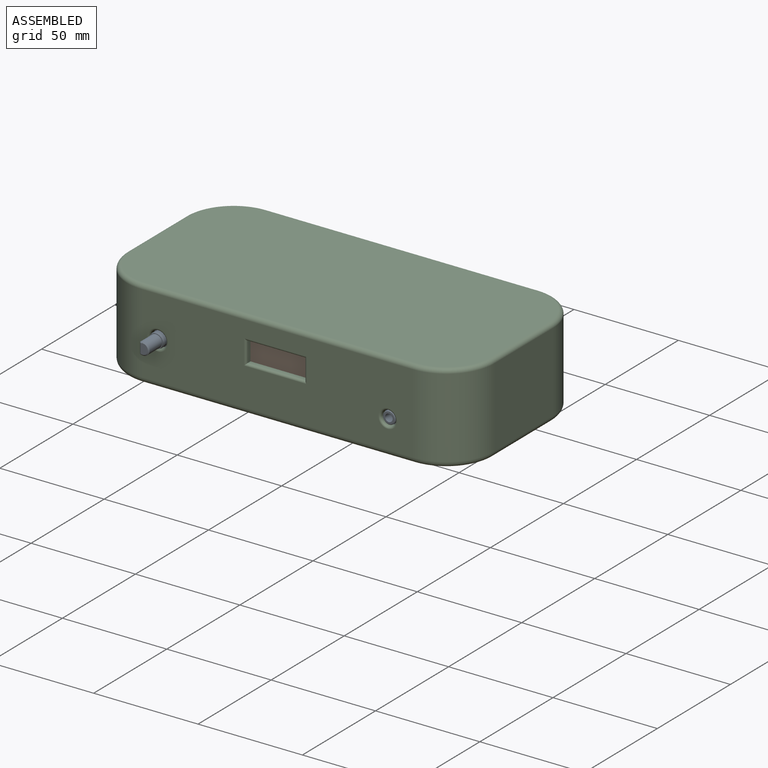
[diagram: assembled view]
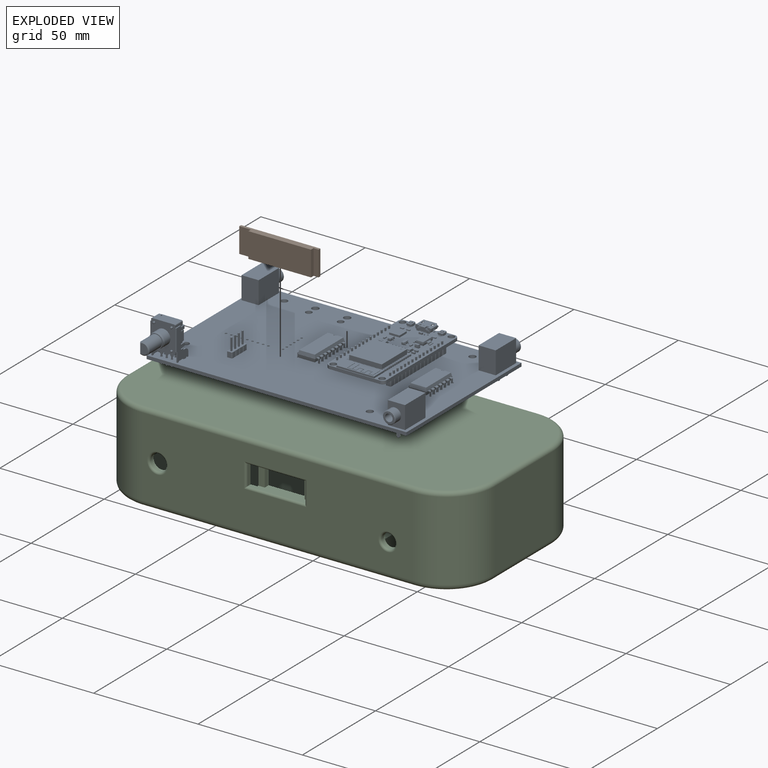
[diagram: exploded view]
GUIDED TOUR — FREECAD ASSEMBLY "case"

This assembly has 3 components, labeled P0..P2 below (a component is one placed body or linked part; the same part can appear more than once), held together by 0 modeled joints plus 2 derived contact edges. A joint is a constraint between two components; its type names the relative motion it leaves free:
  CONTACT — a derived adjacency edge — the two components touch in the source model (clearance under 2% of the assembly's diagonal); it is measured from the geometry, not a modeled constraint.
Axis/direction vectors are unit vectors and 'through' points are millimeter coordinates, both in the assembly's world frame.

MATES
  1. CONTACT "contact_0_2": P0 <-> P2, contact direction (-0.922, 0.113, 0.371) through (135.33, -1.93, 11.57) mm (derived from contact, not a modeled constraint)
  2. CONTACT "contact_1_2": P1 <-> P2, contact direction (0.037, 0.978, -0.205) through (98.60, 0.00, 29.50) mm (derived from contact, not a modeled constraint)

ASSEMBLY ORDER
  1. P0 — the base component [order verified]
  2. P2 [order verified]
  3. P1 [order verified]
(P2 verified with a relaxed clearance tolerance: the source model stores slight part interference there.)
Order-tag legend:
  [order verified] — this step's position reverses a verified removal order: the component was checked to insert without passing through the ones already placed.

Of the 3 components, 2 carry a construction recipe — the FreeCAD feature program (sketches with constraints, then the solid features that consume them) that regenerates the part from scratch, quoted from this document or from the linked companion document it references; the rest are supplied as boundary geometry only. The tour below walks the components in assembly order: each is shown spotlighted twice — in the assembled view, then in the exploded view, where a leader line traces a displaced component back to its assembled socket (components that stay in place when exploded have no leader line; saturated green if recipe-attached, orange if geometry-only; every other component desaturated gray) — followed by its recipe or geometry summary and the mates that hold it.
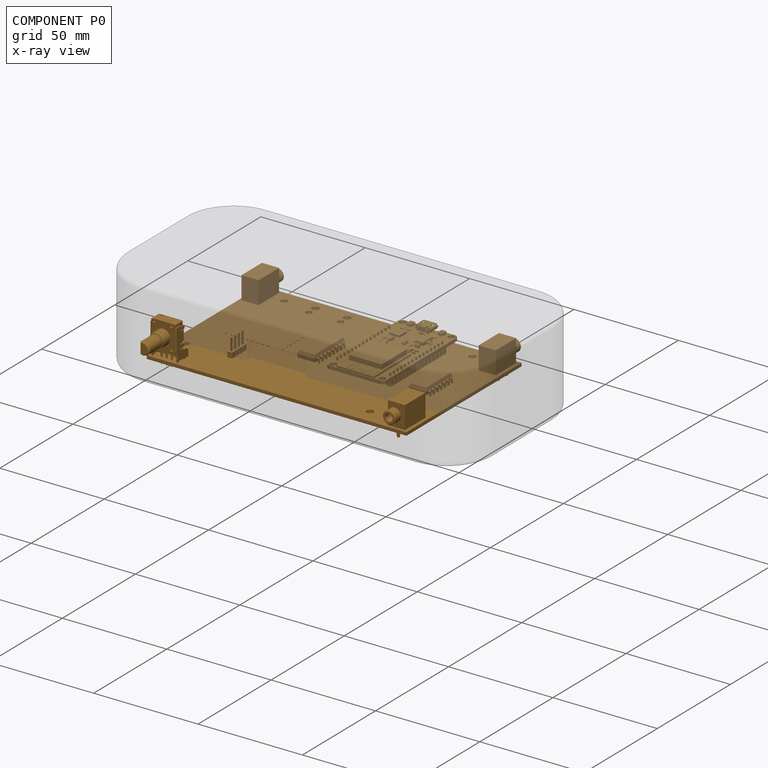
[diagram: component P0 — x-ray view]
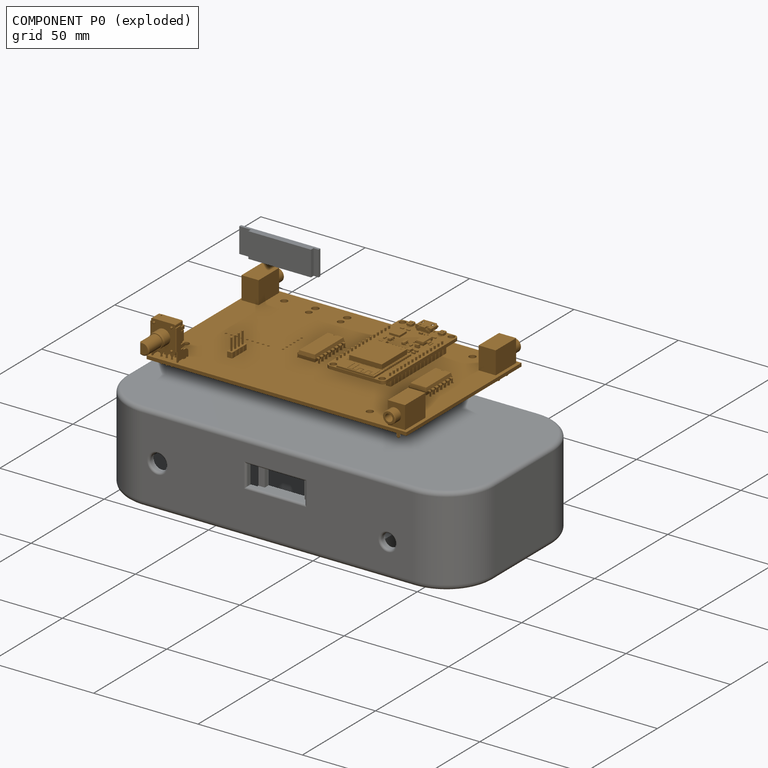
[diagram: component P0 — exploded]
COMPONENT P0 — geometry summary ("PCB"; no construction recipe available for this part):
  bounding box: 124.5 x 95.1 x 22.7 mm
  tessellated surface: 65,174 triangles
  volume: 26353 mm^3 (10% of its bounding box)
Held by: resting contact with P2 (derived edge).
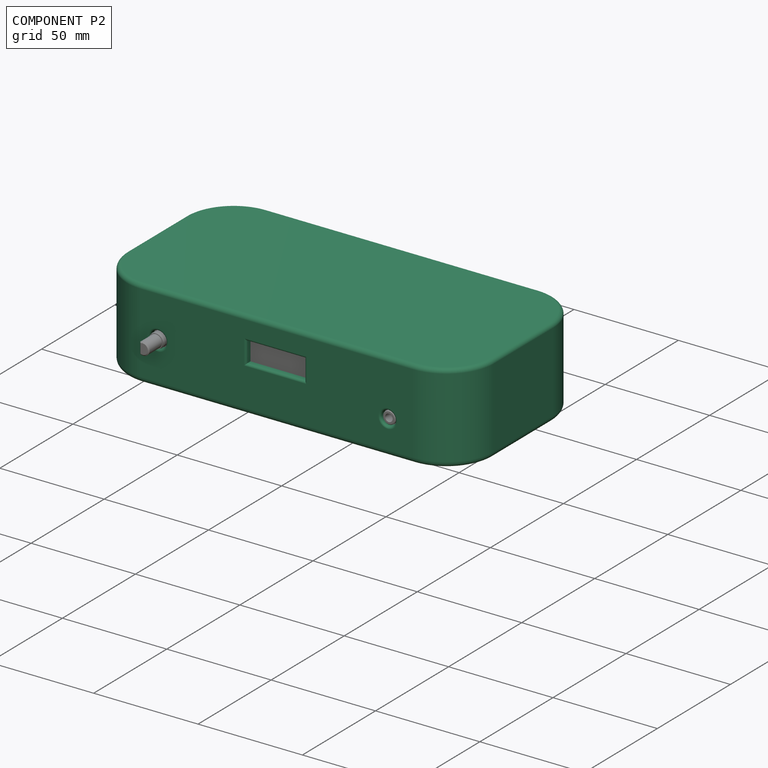
[diagram: component P2 — assembled]
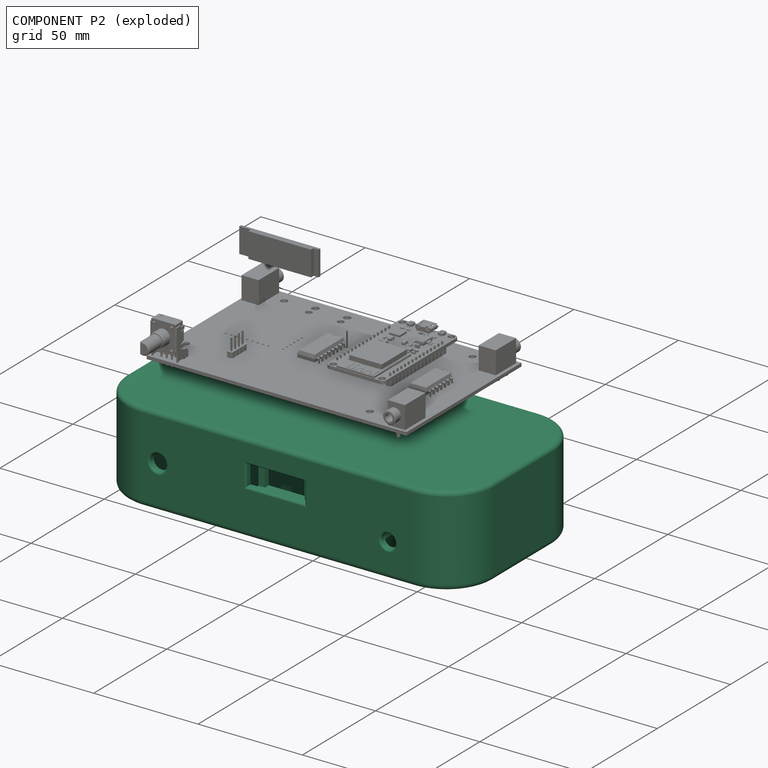
[diagram: component P2 — exploded]
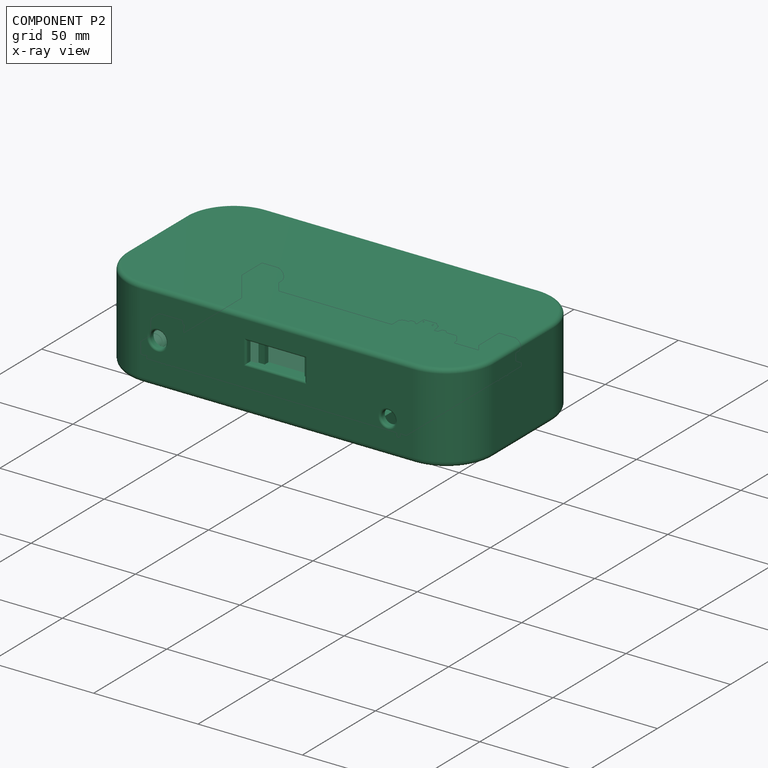
[diagram: component P2 — x-ray view]
COMPONENT P2 — recipe-attached ("Case", modeled in this document).
Held by: resting contact with P0 (derived edge); resting contact with P1 (derived edge).
Construction recipe (the document's own serialized feature program — sketch geometry with constraints, then the solid features built on it; lengths are millimeters unless a unit is written):

FEATURE [Sketcher::SketchObject] Sketch
  ArcFitTolerance = 1e-06
  AttachmentSupport = -> [XY_Plane001]
  ExternalBSplineMaxDegree = 5
  ExternalBSplineTolerance = 0.0001
  FixShape = 1
  FullyConstrained = true
  InternalTolerance = 1e-06
  InvalidShape = false
  MakeInternals = false
  MapMode = 5
  Support = -> [XY_Plane001]
  TreeRank = 109
  ValidateShape = false
  sketch-geometry (10):
    g0: ArcOfCircle CenterX=20 CenterY=20 CenterZ=0 NormalX=0 NormalY=0 NormalZ=1 AngleXU=0 Radius=20 StartAngle=3.14159 EndAngle=4.71239
    g1: LineSegment StartX=0 StartY=20 StartZ=0 EndX=0 EndY=60 EndZ=0
    g2: ArcOfCircle CenterX=20 CenterY=60 CenterZ=0 NormalX=0 NormalY=0 NormalZ=1 AngleXU=0 Radius=20 StartAngle=1.5708 EndAngle=3.14159
    g3: LineSegment StartX=20 StartY=80 StartZ=0 EndX=150 EndY=80 EndZ=0
    g4: ArcOfCircle CenterX=150 CenterY=60 CenterZ=0 NormalX=0 NormalY=0 NormalZ=1 AngleXU=0 Radius=20 StartAngle=2e-16 EndAngle=1.5708
    g5: LineSegment StartX=170 StartY=60 StartZ=0 EndX=170 EndY=20 EndZ=0
    g6: ArcOfCircle CenterX=150 CenterY=20 CenterZ=0 NormalX=0 NormalY=0 NormalZ=1 AngleXU=0 Radius=20 StartAngle=4.71239 EndAngle=6.28319
    g7: LineSegment StartX=150 StartY=0 StartZ=0 EndX=20 EndY=0 EndZ=0
    g8: GeomPoint [constr] X=0 Y=0 Z=0
    g9: GeomPoint [constr] X=170 Y=80 Z=0
  constraints (23):
    c: Tangent(g0,g1) = 1.5708
    c: Tangent(g1,g2) = 1.5708
    c: Tangent(g2,g3) = 1.5708
    c: Tangent(g3,g4) = 1.5708
    c: Tangent(g4,g5) = 1.5708
    c: Tangent(g5,g6) = 1.5708
    c: Tangent(g6,g7) = 1.5708
    c: Tangent(g7,g0) = 1.5708
    c: Horizontal(g3)
    c: Horizontal(g7)
    c: Vertical(g1)
    c: Vertical(g5)
    c: Equal(g0,g2)
    c: Equal(g2,g4)
    c: Equal(g4,g6)
    c: PointOnObject(g8,g1)
    c: PointOnObject(g8,g7)
    c: PointOnObject(g9,g3)
    c: PointOnObject(g9,g5)
    c: Coincident(g8,g-1)
    c: DistanceX(g7,g7) = 130
    c: DistanceX(g6,g5) = 20
    c: DistanceY(g0,g2) = 80
FEATURE [PartDesign::Pad] Pad
  AddSubType = 0
  AlongSketchNormal = false
  AutoTaperInnerAngle = true
  CheckUpToFaceLimits = true
  ClaimChildren = false
  Direction = (0,0,1)
  Fit = 0
  FitJoin = 0
  FixShape = 1
  InnerFit = 0
  InnerFitJoin = 0
  InvalidShape = false
  Length = 40
  Length2 = 100
  Linearize = true
  NewSolid = false
  Profile = -> Sketch
  Suppress = false
  TaperInnerAngle = 0
  TaperInnerAngleRev = 0
  TreeRank = 112
  Type = 0
  ValidateShape = false
  _ProfileBasedVersion = 1
FEATURE [PartDesign::Thickness] Thickness
  AddSubType = 0
  Base = -> Pad [Face10]
  BaseFeature = -> Pad
  FixShape = 1
  Intersection = false
  InvalidShape = false
  Join = 0
  MakeOffset = false
  Mode = 0
  NewSolid = false
  SupportTransform = false
  Suppress = false
  TreeRank = 113
  ValidateShape = false
  Value = 3
  expr: Value = <<Parameters>>.wall_width
FEATURE [PartDesign::SubShapeBinder] Binder  label="Binder(SW1_PEC12R-2220F-S0024_f3370e811a44)..."
  BindCopyOnChange = 0
  BindMode = 0
  ClaimChildren = false
  Context = -> Part001 [Body.Binder.]
  EdgeTolerance = 1e-06
  FillStyle = 0
  FixShape = 1
  Fuse = false
  InvalidShape = false
  MakeFace = true
  MergeEdges = true
  OffsetFill = false
  OffsetIntersection = false
  OffsetJoinType = 0
  OffsetOpenResult = false
  Outline = false
  PartialLoad = false
  Relative = true
  SplitEdges = false
  Support = -> [Board_879e[Step_Models_879e.Top_879e.Shape016.Face137,Step_Models_879e.Top_879e.Shape016.Face104,Step_Models_879e.Top_879e.Shape016.Face138]]
  TightBound = false
  TreeRank = 115
  ValidateShape = false
  _Version = 8
FEATURE [PartDesign::SubShapeBinder] Binder001  label="Binder001(J3_CUI_DEVICES_SJ1-3533NG_4473374c59b9)..."
  BindCopyOnChange = 0
  BindMode = 0
  ClaimChildren = false
  Context = -> Part001 [Body.Binder001.]
  EdgeTolerance = 1e-06
  FillStyle = 0
  FixShape = 1
  Fuse = false
  InvalidShape = false
  MakeFace = true
  MergeEdges = true
  OffsetFill = false
  OffsetIntersection = false
  OffsetJoinType = 0
  OffsetOpenResult = false
  Outline = false
  PartialLoad = false
  Relative = true
  SplitEdges = false
  Support = -> [Board_879e[Step_Models_879e.Top_879e.Shape.Face10,Step_Models_879e.Top_879e.Shape.Face5]]
  TightBound = false
  TreeRank = 118
  ValidateShape = false
  _Version = 8
FEATURE [Part::SubShapeBinder] Import  label="Import(J3_CUI_DEVICES_SJ1-3533NG_4473374c59b9)"
  BindCopyOnChange = 0
  BindMode = 0
  ClaimChildren = false
  Context = -> Part001 [Body.Import.]
  EdgeTolerance = 1e-06
  FillStyle = 0
  FixShape = 1
  Fuse = false
  InvalidShape = false
  MakeFace = false
  MergeEdges = true
  OffsetFill = false
  OffsetIntersection = false
  OffsetJoinType = 0
  OffsetOpenResult = false
  Outline = false
  PartialLoad = false
  Relative = true
  SplitEdges = false
  Support = -> [Board_879e[Step_Models_879e.Top_879e.Shape.]]
  TightBound = false
  TreeRank = 119
  ValidateShape = false
  _Version = 8
FEATURE [Sketcher::SketchObject] Sketch001
  ArcFitTolerance = 1e-06
  AttachmentSupport = -> [XZ_Plane001]
  ExternalBSplineMaxDegree = 5
  ExternalBSplineTolerance = 0.0001
  ExternalGeometry = -> [Binder,Binder001,Import]
  FixShape = 1
  FullyConstrained = false
  InternalTolerance = 1e-06
  InvalidShape = false
  MakeInternals = false
  MapMode = 5
  Placement = pos=(0,0,0) rot=(1,0,0;1.5708rad)
  Support = -> [XZ_Plane001]
  TreeRank = 116
  ValidateShape = false
  expr: Constraints[3] = <<Parameters>>.clearance
  expr: Constraints[6] = <<Parameters>>.clearance
  sketch-geometry (4):
    g0: Circle CenterX=27.66 CenterY=18 CenterZ=0 NormalX=0 NormalY=0 NormalZ=1 AngleXU=0 Radius=4
    g1: GeomPoint [constr] X=31.66 Y=18 Z=0
    g2: Circle CenterX=137.94 CenterY=13.5 CenterZ=0 NormalX=0 NormalY=0 NormalZ=1 AngleXU=0 Radius=3.5
    g3: GeomPoint [constr] X=137.94 Y=17 Z=0
  constraints (7):
    c: Coincident(g0,g-6)
    c: PointOnObject(g1,g0)
    c: Horizontal(g1,g-4)
    c: DistanceX(g-4,g1) = 0.5
    c: Coincident(g-8,g2)
    c: PointOnObject(g3,g2)
    c: DistanceY(g-8,g3) = 0.5
FEATURE [PartDesign::Pocket] Pocket
  AddSubType = 1
  AutoTaperInnerAngle = true
  BaseFeature = -> Thickness
  CheckUpToFaceLimits = true
  ClaimChildren = false
  Fit = 0
  FitJoin = 0
  FixShape = 1
  InnerFit = 0
  InnerFitJoin = 0
  InvalidShape = false
  Length = 5
  Length2 = 100
  Linearize = true
  NewSolid = false
  Profile = -> Sketch001
  Reversed = true
  Suppress = false
  TaperInnerAngle = 0
  TaperInnerAngleRev = 0
  TreeRank = 117
  Type = 0
  ValidateShape = false
  _ProfileBasedVersion = 1
  _Version = 1
FEATURE [PartDesign::SubShapeBinder] Binder002  label="Binder002(J3_CUI_DEVICES_SJ1_3533NG_4473374c59b9_ln_001_CUI_DEVICES_SJ1-3533NG_090c0ab9f9ee)..."
  BindCopyOnChange = 0
  BindMode = 0
  ClaimChildren = false
  Context = -> Part001 [Body.Binder002.]
  EdgeTolerance = 1e-06
  FillStyle = 0
  FixShape = 1
  Fuse = false
  InvalidShape = false
  MakeFace = true
  MergeEdges = true
  OffsetFill = false
  OffsetIntersection = false
  OffsetJoinType = 0
  OffsetOpenResult = false
  Outline = false
  PartialLoad = false
  Relative = true
  SplitEdges = false
  Support = -> <blob elided: 541 chars, md5=5183de5e>
  TightBound = false
  TreeRank = 120
  ValidateShape = false
  _Version = 8
FEATURE [Sketcher::SketchObject] Sketch002
  ArcFitTolerance = 1e-06
  AttachmentSupport = -> [XZ_Plane001]
  ExternalBSplineMaxDegree = 5
  ExternalBSplineTolerance = 0.0001
  ExternalGeometry = -> [Binder002]
  FixShape = 1
  FullyConstrained = true
  InternalTolerance = 1e-06
  InvalidShape = false
  MakeInternals = false
  MapMode = 5
  Placement = pos=(0,0,0) rot=(1,0,0;1.5708rad)
  Support = -> [XZ_Plane001]
  TreeRank = 121
  ValidateShape = false
  expr: Constraints[12] = <<Parameters>>.clearance
  expr: Constraints[13] = <<Parameters>>.clearance
  expr: Constraints[14] = <<Parameters>>.clearance
  expr: Constraints[15] = <<Parameters>>.clearance
  sketch-geometry (8):
    g0: Circle CenterX=139.54 CenterY=13.5 CenterZ=0 NormalX=0 NormalY=0 NormalZ=1 AngleXU=0 Radius=3.5
    g1: Circle CenterX=64.45 CenterY=14.5 CenterZ=0 NormalX=0 NormalY=0 NormalZ=1 AngleXU=0 Radius=4.65
    g2: Circle CenterX=49.21 CenterY=14.5 CenterZ=0 NormalX=0 NormalY=0 NormalZ=1 AngleXU=0 Radius=4.65
    g3: Circle CenterX=25.96 CenterY=13.5 CenterZ=0 NormalX=0 NormalY=0 NormalZ=1 AngleXU=0 Radius=3.5
    g4: GeomPoint [constr] X=139.54 Y=17 Z=0
    g5: GeomPoint [constr] X=59.8 Y=14.5 Z=0
    g6: GeomPoint [constr] X=44.56 Y=14.5 Z=0
    g7: GeomPoint [constr] X=25.96 Y=17 Z=0
  constraints (16):
    c: Coincident(g-4,g3)
    c: Coincident(g-6,g2)
    c: Coincident(g-8,g1)
    c: Coincident(g-10,g0)
    c: PointOnObject(g4,g0)
    c: PointOnObject(g5,g1)
    c: PointOnObject(g6,g2)
    c: PointOnObject(g7,g3)
    c: Vertical(g7,g-4)
    c: Horizontal(g6,g-5)
    c: Horizontal(g5,g-7)
    c: Vertical(g4,g-10)
    c: DistanceY(g-10,g4) = 0.5
    c: DistanceX(g5,g-7) = 0.5
    c: DistanceX(g6,g-5) = 0.5
    c: DistanceY(g-4,g7) = 0.5
FEATURE [PartDesign::Pocket] Pocket001
  AddSubType = 1
  AutoTaperInnerAngle = true
  BaseFeature = -> Pocket
  CheckUpToFaceLimits = true
  ClaimChildren = false
  Fit = 0
  FitJoin = 0
  FixShape = 1
  InnerFit = 0
  InnerFitJoin = 0
  InvalidShape = false
  Length = 100
  Length2 = 100
  Linearize = true
  NewSolid = false
  Profile = -> Sketch002
  Suppress = false
  TaperInnerAngle = 0
  TaperInnerAngleRev = 0
  TreeRank = 122
  Type = 0
  ValidateShape = false
  _ProfileBasedVersion = 1
  _Version = 1
FEATURE [PartDesign::SubShapeBinder] Binder003  label="Binder003(U2_USB_Micro-B_Molex_47346-0001_d01e381b36a0[6])..."
  BindCopyOnChange = 0
  BindMode = 0
  ClaimChildren = false
  Context = -> Part001 [Body.Binder003.]
  EdgeTolerance = 1e-06
  FillStyle = 0
  FixShape = 1
  Fuse = false
  InvalidShape = false
  MakeFace = true
  MergeEdges = true
  OffsetFill = false
  OffsetIntersection = false
  OffsetJoinType = 0
  OffsetOpenResult = false
  Outline = false
  PartialLoad = false
  Relative = true
  SplitEdges = false
  Support = -> [Board_879e[Step_Models_879e.Top_879e.Shape005.Face191,Step_Models_879e.Top_879e.Shape005.Face225]]
  TightBound = false
  TreeRank = 123
  ValidateShape = false
  _Version = 8
FEATURE [Sketcher::SketchObject] Sketch003
  ArcFitTolerance = 1e-06
  AttachmentSupport = -> [XZ_Plane001]
  ExternalBSplineMaxDegree = 5
  ExternalBSplineTolerance = 0.0001
  ExternalGeometry = -> [Binder003]
  FixShape = 1
  FullyConstrained = true
  InternalTolerance = 1e-06
  InvalidShape = false
  MakeInternals = false
  MapMode = 5
  Placement = pos=(0,0,0) rot=(1,0,0;1.5708rad)
  Support = -> [XZ_Plane001]
  TreeRank = 124
  ValidateShape = false
  sketch-geometry (4):
    g0: ArcOfCircle CenterX=98.0835 CenterY=13.2324 CenterZ=0 NormalX=0 NormalY=0 NormalZ=1 AngleXU=0 Radius=2.7231 StartAngle=1.5708 EndAngle=4.71239
    g1: ArcOfCircle CenterX=104.437 CenterY=13.2324 CenterZ=0 NormalX=0 NormalY=0 NormalZ=1 AngleXU=0 Radius=2.7231 StartAngle=4.71239 EndAngle=7.85398
    g2: LineSegment StartX=98.0835 StartY=10.5093 StartZ=0 EndX=104.437 EndY=10.5093 EndZ=0
    g3: LineSegment StartX=104.437 StartY=15.9555 StartZ=0 EndX=98.0835 EndY=15.9555 EndZ=0
  constraints (10):
    c: Tangent(g0,g2) = -1.5708
    c: Tangent(g2,g1) = -1.5708
    c: Tangent(g1,g3) = -1.5708
    c: Tangent(g3,g0) = -1.5708
    c: Equal(g0,g1)
    c: Horizontal(g3)
    c: Vertical(g0,g-35)
    c: Vertical(g1,g-13)
    c: DistanceY(g-4,g1) = 1.5
    c: DistanceY(g1,g-19) = 1.5
FEATURE [PartDesign::Pocket] Pocket002
  AddSubType = 1
  AutoTaperInnerAngle = true
  BaseFeature = -> Pocket001
  CheckUpToFaceLimits = true
  ClaimChildren = false
  Fit = 0
  FitJoin = 0
  FixShape = 1
  InnerFit = 0
  InnerFitJoin = 0
  InvalidShape = false
  Length = 5
  Length2 = 100
  Linearize = true
  NewSolid = false
  Profile = -> Sketch003
  Suppress = false
  TaperInnerAngle = 0
  TaperInnerAngleRev = 0
  TreeRank = 125
  Type = 1
  ValidateShape = false
  _ProfileBasedVersion = 1
  _Version = 1
FEATURE [PartDesign::SubShapeBinder] Binder004  label="Binder004(Pocket002)..."
  BindCopyOnChange = 0
  BindMode = 0
  ClaimChildren = false
  Context = -> Part001 [Body.Binder004.]
  EdgeTolerance = 1e-06
  FillStyle = 0
  FixShape = 1
  Fuse = false
  InvalidShape = false
  MakeFace = true
  MergeEdges = true
  OffsetFill = false
  OffsetIntersection = false
  OffsetJoinType = 0
  OffsetOpenResult = false
  Outline = false
  PartialLoad = false
  Relative = true
  SplitEdges = false
  Support = -> [Pocket002[Edge41,Edge40,Edge39,Edge38,Edge37,Edge36,Edge35,Edge34]]
  TightBound = false
  TreeRank = 126
  ValidateShape = false
  _Version = 8
FEATURE [PartDesign::Pad] Pad001
  AddSubType = 0
  AlongSketchNormal = false
  AutoTaperInnerAngle = true
  BaseFeature = -> Pocket002
  CheckUpToFaceLimits = true
  ClaimChildren = false
  Direction = (0,0,1)
  Fit = 0
  FitJoin = 0
  FixShape = 1
  InnerFit = 0
  InnerFitJoin = 0
  InvalidShape = false
  Length = 3
  Length2 = 100
  Linearize = true
  NewSolid = false
  Profile = -> Binder004
  Reversed = true
  Suppress = false
  TaperInnerAngle = 0
  TaperInnerAngleRev = 0
  TreeRank = 127
  Type = 0
  ValidateShape = false
  _ProfileBasedVersion = 1
  expr: Length = <<Parameters>>.wall_width
FEATURE [PartDesign::Fillet] Fillet
  AddSubType = 0
  Base = -> Pad001 [Edge121,Edge122,Edge109,Edge84,Edge123,Edge124,Edge125,Edge96]
  BaseFeature = -> Pad001
  FixShape = 1
  InvalidShape = false
  NewSolid = false
  Radius = 2
  SupportTransform = false
  Suppress = false
  TreeRank = 128
  ValidateShape = false
FEATURE [PartDesign::SubShapeBinder] Binder005  label="Binder005(Pad003)"
  BindCopyOnChange = 0
  BindMode = 0
  ClaimChildren = false
  Context = -> Part001 [Body.Binder005.]
  EdgeTolerance = 1e-06
  FillStyle = 0
  FixShape = 1
  Fuse = false
  InvalidShape = false
  MakeFace = true
  MergeEdges = true
  OffsetFill = false
  OffsetIntersection = false
  OffsetJoinType = 0
  OffsetOpenResult = false
  Outline = false
  PartialLoad = false
  Relative = true
  SplitEdges = false
  Support = -> [Part[Body002.Pad003.Face6]]
  TightBound = false
  TreeRank = 164
  ValidateShape = false
  _Version = 8
FEATURE [Sketcher::SketchObject] Sketch006
  ArcFitTolerance = 1e-06
  AttachmentSupport = -> [XZ_Plane001]
  ExternalBSplineMaxDegree = 5
  ExternalBSplineTolerance = 0.0001
  ExternalGeometry = -> [Binder005]
  FixShape = 1
  FullyConstrained = true
  InternalTolerance = 1e-06
  InvalidShape = false
  MakeInternals = false
  MapMode = 5
  Placement = pos=(0,0,0) rot=(1,0,0;1.5708rad)
  Support = -> [XZ_Plane001]
  TreeRank = 165
  ValidateShape = false
  sketch-geometry (4):
    g0: LineSegment StartX=70.1 StartY=29 StartZ=0 EndX=98.1 EndY=29 EndZ=0
    g1: LineSegment StartX=98.1 StartY=29 StartZ=0 EndX=98.1 EndY=19 EndZ=0
    g2: LineSegment StartX=98.1 StartY=19 StartZ=0 EndX=70.1 EndY=19 EndZ=0
    g3: LineSegment StartX=70.1 StartY=19 StartZ=0 EndX=70.1 EndY=29 EndZ=0
  constraints (12):
    c: Coincident(g0,g1)
    c: Coincident(g1,g2)
    c: Coincident(g2,g3)
    c: Coincident(g3,g0)
    c: Horizontal(g0)
    c: Horizontal(g2)
    c: Vertical(g1)
    c: Vertical(g3)
    c: DistanceX(g-4,g0) = 1
    c: DistanceX(g0,g-5) = 1
    c: DistanceY(g0,g-5) = 1
    c: DistanceY(g-6,g1) = 1
FEATURE [Sketcher::SketchObject] Sketch007
  ArcFitTolerance = 1e-06
  AttachmentSupport = -> [XZ_Plane001]
  ExternalBSplineMaxDegree = 5
  ExternalBSplineTolerance = 0.0001
  FixShape = 1
  FullyConstrained = true
  InternalTolerance = 1e-06
  InvalidShape = false
  MakeInternals = false
  MapMode = 5
  Placement = pos=(0,0,0) rot=(1,0,0;1.5708rad)
  Support = -> [XZ_Plane001]
  TreeRank = 177
  ValidateShape = false
  expr: Constraints[2] = <<Parameters>>.case_inner_width + <<Parameters>>.case_corner_radius * 2 - <<Parameters>>.wall_width - 3
  sketch-geometry (1):
    g0: LineSegment StartX=3 StartY=35 StartZ=0 EndX=167 EndY=35 EndZ=0
  constraints (4):
    c: Horizontal(g0)
    c: DistanceY(g-1,g0) = 35
    c: DistanceX(g0,g0) = 164
    c: DistanceX(g-1,g0) = 3
FEATURE [PartDesign::Extrusion] Extrusion
  AddSubType = 0
  AlongSketchNormal = false
  AutoTaperInnerAngle = true
  CheckUpToFaceLimits = true
  ClaimChildren = false
  Direction = (0,-1,-2e-16)
  Fit = 0
  FitJoin = 0
  FixShape = 1
  InnerFit = 0
  InnerFitJoin = 0
  InvalidShape = false
  Length = 40
  Length2 = 100
  Linearize = true
  Midplane = true
  NewSolid = false
  Profile = -> Sketch007
  Suppress = false
  TaperInnerAngle = 0
  TaperInnerAngleRev = 0
  TreeRank = 178
  Type = 0
  ValidateShape = false
  _ProfileBasedVersion = 1
FEATURE [Sketcher::SketchObject] Sketch008
  ArcFitTolerance = 1e-06
  AttachmentOffset = pos=(0,0,-80) rot=(0,0,1;0rad)
  AttachmentSupport = -> [XZ_Plane001]
  ExternalBSplineMaxDegree = 5
  ExternalBSplineTolerance = 0.0001
  ExternalGeometry = -> [Extrusion,Sketch007]
  FixShape = 1
  FullyConstrained = true
  InternalTolerance = 1e-06
  InvalidShape = false
  MakeInternals = false
  MapMode = 5
  Placement = pos=(0,80,1.78e-14) rot=(1,0,0;1.5708rad)
  Support = -> [XZ_Plane001]
  TreeRank = 198
  ValidateShape = false
  sketch-geometry (9):
    g0: LineSegment StartX=167 StartY=35 StartZ=0 EndX=162 EndY=35 EndZ=0
    g1: LineSegment StartX=150 StartY=23 StartZ=0 EndX=150 EndY=13 EndZ=0
    g2: LineSegment StartX=144 StartY=7 StartZ=0 EndX=26 EndY=7 EndZ=0
    g3: LineSegment StartX=20 StartY=13 StartZ=0 EndX=20 EndY=23 EndZ=0
    g4: LineSegment StartX=8 StartY=35 StartZ=0 EndX=3 EndY=35 EndZ=0
    g5: ArcOfCircle CenterX=162 CenterY=23 CenterZ=0 NormalX=0 NormalY=0 NormalZ=1 AngleXU=0 Radius=12 StartAngle=1.5708 EndAngle=3.14159
    g6: ArcOfCircle CenterX=144 CenterY=13 CenterZ=0 NormalX=0 NormalY=0 NormalZ=1 AngleXU=0 Radius=6 StartAngle=4.71239 EndAngle=6.28319
    g7: ArcOfCircle CenterX=26 CenterY=13 CenterZ=0 NormalX=0 NormalY=0 NormalZ=1 AngleXU=0 Radius=6 StartAngle=3.14159 EndAngle=4.71239
    g8: ArcOfCircle CenterX=8 CenterY=23 CenterZ=0 NormalX=0 NormalY=0 NormalZ=1 AngleXU=0 Radius=12 StartAngle=0 EndAngle=1.5708
  constraints (30):
    c: Horizontal(g0)
    c: Vertical(g1)
    c: Horizontal(g2)
    c: Vertical(g3)
    c: Horizontal(g4)
    c: Coincident(g0,g-5)
    c: Coincident(g5,g0)
    c: Coincident(g5,g1)
    c: Coincident(g6,g1)
    c: Coincident(g6,g2)
    c: Coincident(g7,g2)
    c: Coincident(g7,g3)
    c: Coincident(g8,g4)
    c: Coincident(g8,g3)
    c: Coincident(g4,g-4)
    c: Horizontal(g8,g3)
    c: Horizontal(g5,g1)
    c: Horizontal(g7,g3)
    c: Horizontal(g6,g1)
    c: Vertical(g6,g2)
    c: Vertical(g2,g7)
    c: Vertical(g4,g8)
    c: Vertical(g5,g5)
    c: DistanceY(g-1,g2) = 7
    c: DistanceX(g-4,g3) = 17
    c: DistanceX(g1,g0) = 17
    c: Equal(g8,g5)
    c: Equal(g7,g6)
    c: DistanceX(g4,g4) = 5
    c: DistanceY(g3,g3) = 10
FEATURE [PartDesign::Extrusion] Extrusion001
  AddSubType = 0
  AlongSketchNormal = false
  AutoTaperInnerAngle = true
  CheckUpToFaceLimits = true
  ClaimChildren = false
  Direction = (0,-1,-2e-16)
  Fit = 0
  FitJoin = 0
  FixShape = 1
  InnerFit = 0
  InnerFitJoin = 0
  InvalidShape = false
  Length = 40
  Length2 = 100
  Linearize = true
  Midplane = true
  NewSolid = false
  Profile = -> Sketch008
  Suppress = false
  TaperInnerAngle = 0
  TaperInnerAngleRev = 0
  TreeRank = 199
  Type = 0
  ValidateShape = false
  _ProfileBasedVersion = 1
FEATURE [PartDesign::Plane] DatumPlane
  AttachmentOffset = pos=(0,0,0) rot=(0,1,0;1.5708rad)
  AttachmentSupport = -> [Extrusion,Extrusion001]
  FixShape = 1
  InvalidShape = false
  Length = 120
  MapMode = 45
  MinimumLength = 10
  MinimumWidth = 10
  Placement = pos=(167,40,35) rot=(-0.57735,0.57735,0.57735;4.18879rad)
  ResizeMode = 0
  Support = -> [Extrusion,Extrusion001]
  TreeRank = 200
  ValidateShape = false
  Width = 28
FEATURE [Sketcher::SketchObject] Sketch009
  ArcFitTolerance = 1e-06
  AttachmentSupport = -> [DatumPlane]
  ExternalBSplineMaxDegree = 5
  ExternalBSplineTolerance = 0.0001
  ExternalGeometry = -> [Extrusion001,Extrusion]
  FixShape = 1
  FullyConstrained = true
  InternalTolerance = 1e-06
  InvalidShape = false
  MakeInternals = false
  MapMode = 5
  Placement = pos=(167,40,35) rot=(-0.57735,0.57735,0.57735;4.18879rad)
  Support = -> [DatumPlane]
  TreeRank = 201
  ValidateShape = false
  sketch-geometry (1):
    g0: LineSegment StartX=-60 StartY=-2.13e-14 StartZ=0 EndX=60 EndY=7.1e-15 EndZ=0
  constraints (2):
    c: Coincident(g0,g-4)
    c: Coincident(g0,g-3)
FEATURE [PartDesign::Extrusion] Extrusion002
  AddSubType = 0
  AlongSketchNormal = false
  AutoTaperInnerAngle = true
  CheckUpToFaceLimits = true
  ClaimChildren = false
  Direction = (-1,1.1e-15,0)
  Fit = 0
  FitJoin = 0
  FixShape = 1
  InnerFit = 0
  InnerFitJoin = 0
  InvalidShape = false
  Length = 20
  Length2 = 100
  Linearize = true
  NewSolid = false
  Profile = -> Sketch009
  Reversed = true
  Suppress = false
  TaperInnerAngle = 0
  TaperInnerAngleRev = 0
  TreeRank = 202
  Type = 0
  ValidateShape = false
  _ProfileBasedVersion = 1
FEATURE [PartDesign::Plane] DatumPlane001
  AttachmentOffset = pos=(0,0,0) rot=(0,1,0;1.5708rad)
  AttachmentSupport = -> [Extrusion,Extrusion001]
  FixShape = 1
  InvalidShape = false
  Length = 120
  MapMode = 45
  MinimumLength = 10
  MinimumWidth = 10
  Placement = pos=(3,40,35) rot=(-0.57735,0.57735,0.57735;4.18879rad)
  ResizeMode = 0
  Support = -> [Extrusion,Extrusion001]
  TreeRank = 203
  ValidateShape = false
  Width = 28
FEATURE [Sketcher::SketchObject] Sketch010
  ArcFitTolerance = 1e-06
  AttachmentSupport = -> [DatumPlane001]
  ExternalBSplineMaxDegree = 5
  ExternalBSplineTolerance = 0.0001
  ExternalGeometry = -> [Extrusion,Extrusion001]
  FixShape = 1
  FullyConstrained = true
  InternalTolerance = 1e-06
  InvalidShape = false
  MakeInternals = false
  MapMode = 5
  Placement = pos=(3,40,35) rot=(-0.57735,0.57735,0.57735;4.18879rad)
  Support = -> [DatumPlane001]
  TreeRank = 204
  ValidateShape = false
  sketch-geometry (1):
    g0: LineSegment StartX=-60 StartY=-2.13e-14 StartZ=0 EndX=60 EndY=7.1e-15 EndZ=0
  constraints (2):
    c: Coincident(g0,g-3)
    c: Coincident(g0,g-4)
FEATURE [PartDesign::Extrusion] Extrusion003
  AddSubType = 0
  AlongSketchNormal = false
  AutoTaperInnerAngle = true
  CheckUpToFaceLimits = true
  ClaimChildren = false
  Direction = (-1,2e-16,0)
  Fit = 0
  FitJoin = 0
  FixShape = 1
  InnerFit = 0
  InnerFitJoin = 0
  InvalidShape = false
  Length = 20
  Length2 = 100
  Linearize = true
  NewSolid = false
  Profile = -> Sketch010
  Suppress = false
  TaperInnerAngle = 0
  TaperInnerAngleRev = 0
  TreeRank = 205
  Type = 0
  ValidateShape = false
  _ProfileBasedVersion = 1
FEATURE [PartDesign::SubShapeBinder] Binder007  label="Binder007(Pcb_879ee)"
  BindCopyOnChange = 0
  BindMode = 0
  ClaimChildren = false
  Context = -> Part001 [Body.Binder007.]
  EdgeTolerance = 1e-06
  FillStyle = 0
  FixShape = 1
  Fuse = false
  InvalidShape = false
  MakeFace = true
  MergeEdges = true
  OffsetFill = false
  OffsetIntersection = false
  OffsetJoinType = 0
  OffsetOpenResult = false
  Outline = false
  PartialLoad = false
  Relative = true
  SplitEdges = false
  Support = -> [Board_879e[Board_Geoms_879e.Pcb_879e.]]
  TightBound = false
  TreeRank = 235
  ValidateShape = false
  _Version = 8
FEATURE [Sketcher::SketchObject] Sketch011
  ArcFitTolerance = 1e-06
  AttachmentSupport = -> [XY_Plane001]
  ExternalBSplineMaxDegree = 5
  ExternalBSplineTolerance = 0.0001
  ExternalGeometry = -> [Binder007]
  FixShape = 1
  FullyConstrained = true
  InternalTolerance = 1e-06
  InvalidShape = false
  MakeInternals = false
  MapMode = 5
  Support = -> [XY_Plane001]
  TreeRank = 236
  ValidateShape = false
  sketch-geometry (4):
    g0: Circle CenterX=35.24 CenterY=72.89 CenterZ=0 NormalX=0 NormalY=0 NormalZ=1 AngleXU=0 Radius=4.5
    g1: Circle CenterX=125.41 CenterY=72.89 CenterZ=0 NormalX=0 NormalY=0 NormalZ=1 AngleXU=0 Radius=4.5
    g2: Circle CenterX=121.6 CenterY=8.12 CenterZ=0 NormalX=0 NormalY=0 NormalZ=1 AngleXU=0 Radius=4.5
    g3: Circle CenterX=26.35 CenterY=18.28 CenterZ=0 NormalX=0 NormalY=0 NormalZ=1 AngleXU=0 Radius=4.5
  constraints (8):
    c: Coincident(g1,g-4)
    c: Coincident(g0,g-3)
    c: Coincident(g3,g-6)
    c: Coincident(g2,g-5)
    c: Equal(g1,g0)
    c: Equal(g3,g2)
    c: Equal(g0,g3)
    c: Diameter(g0) = 9
FEATURE [PartDesign::Pad] Pad004
  AddSubType = 0
  AlongSketchNormal = false
  AutoTaperInnerAngle = true
  BaseFeature = -> Fillet
  CheckUpToFaceLimits = true
  ClaimChildren = false
  Direction = (0,0,1)
  Fit = 0
  FitJoin = 0
  FixShape = 1
  InnerFit = 0
  InnerFitJoin = 0
  InvalidShape = false
  Length = 10
  Length2 = 100
  Linearize = true
  NewSolid = false
  Profile = -> Sketch011
  Suppress = false
  TaperInnerAngle = 0
  TaperInnerAngleRev = 0
  TreeRank = 237
  Type = 3
  UpToFace = -> Binder007 [Face164]
  ValidateShape = false
  _ProfileBasedVersion = 1
FEATURE [Sketcher::SketchObject] Sketch012
  ArcFitTolerance = 1e-06
  AttachmentSupport = -> [XY_Plane001]
  ExternalBSplineMaxDegree = 5
  ExternalBSplineTolerance = 0.0001
  ExternalGeometry = -> [Binder007]
  FixShape = 1
  FullyConstrained = true
  InternalTolerance = 1e-06
  InvalidShape = false
  MakeInternals = false
  MapMode = 5
  Support = -> [XY_Plane001]
  TreeRank = 238
  ValidateShape = false
  sketch-geometry (8):
    g0: LineSegment StartX=24.85 StartY=74.39 StartZ=0 EndX=126.91 EndY=74.39 EndZ=0
    g1: LineSegment StartX=126.91 StartY=74.39 StartZ=0 EndX=126.91 EndY=6.62 EndZ=0
    g2: LineSegment StartX=126.91 StartY=6.62 StartZ=0 EndX=24.85 EndY=6.62 EndZ=0
    g3: LineSegment StartX=24.85 StartY=6.62 StartZ=0 EndX=24.85 EndY=74.39 EndZ=0
    g4: LineSegment StartX=27.85 StartY=71.39 StartZ=0 EndX=123.91 EndY=71.39 EndZ=0
    g5: LineSegment StartX=123.91 StartY=71.39 StartZ=0 EndX=123.91 EndY=9.62 EndZ=0
    g6: LineSegment StartX=123.91 StartY=9.62 StartZ=0 EndX=27.85 EndY=9.62 EndZ=0
    g7: LineSegment StartX=27.85 StartY=9.62 StartZ=0 EndX=27.85 EndY=71.39 EndZ=0
  constraints (24):
    c: Coincident(g0,g1)
    c: Coincident(g1,g2)
    c: Coincident(g2,g3)
    c: Coincident(g3,g0)
    c: Horizontal(g0)
    c: Horizontal(g2)
    c: Vertical(g1)
    c: Vertical(g3)
    c: Coincident(g4,g5)
    c: Coincident(g5,g6)
    c: Coincident(g6,g7)
    c: Coincident(g7,g4)
    c: Horizontal(g4)
    c: Horizontal(g6)
    c: Vertical(g5)
    c: Vertical(g7)
    c: DistanceY(g4,g-4) = 1.5
    c: DistanceX(g4,g-4) = 1.5
    c: DistanceY(g-5,g5) = 1.5
    c: DistanceX(g-6,g6) = 1.5
    c: DistanceX(g-4,g0) = 1.5
    c: DistanceY(g-4,g0) = 1.5
    c: DistanceX(g2,g-6) = 1.5
    c: DistanceY(g1,g-5) = 1.5
FEATURE [PartDesign::Pad] Pad005
  AddSubType = 0
  AlongSketchNormal = false
  AutoTaperInnerAngle = true
  BaseFeature = -> Pad004
  CheckUpToFaceLimits = true
  ClaimChildren = false
  Direction = (0,0,1)
  Fit = 0
  FitJoin = 0
  FixShape = 1
  InnerFit = 0
  InnerFitJoin = 0
  InvalidShape = false
  Length = 10
  Length2 = 100
  Linearize = true
  NewSolid = false
  Profile = -> Sketch012
  Suppress = false
  TaperInnerAngle = 0
  TaperInnerAngleRev = 0
  TreeRank = 239
  Type = 3
  UpToFace = -> Binder007 [Face164]
  ValidateShape = false
  _ProfileBasedVersion = 1
FEATURE [PartDesign::Pocket] Pocket003
  AddSubType = 1
  AutoTaperInnerAngle = true
  BaseFeature = -> Pad005
  CheckUpToFaceLimits = true
  ClaimChildren = false
  Fit = 0
  FitJoin = 0
  FixShape = 1
  InnerFit = 0
  InnerFitJoin = 0
  InvalidShape = false
  Length = 5
  Length2 = 100
  Linearize = true
  NewSolid = false
  Profile = -> Sketch006
  Reversed = true
  Suppress = false
  TaperInnerAngle = 0
  TaperInnerAngleRev = 0
  TreeRank = 166
  Type = 1
  ValidateShape = false
  _ProfileBasedVersion = 1
  _Version = 1
FEATURE [PartDesign::Plane] DatumPlane002
  AttachmentSupport = -> [Binder007]
  FixShape = 1
  InvalidShape = false
  Length = 102.973
  MapMode = 13
  MinimumLength = 10
  MinimumWidth = 10
  Placement = pos=(102.973,52.9933,6.4) rot=(0,0,1;0rad)
  ResizeMode = 0
  Support = -> [Binder007]
  TreeRank = 240
  ValidateShape = false
  Width = 52.9933
FEATURE [Sketcher::SketchObject] Sketch013
  ArcFitTolerance = 1e-06
  AttachmentSupport = -> [DatumPlane002]
  ExternalBSplineMaxDegree = 5
  ExternalBSplineTolerance = 0.0001
  ExternalGeometry = -> [Binder007]
  FixShape = 1
  FullyConstrained = true
  InternalTolerance = 1e-06
  InvalidShape = false
  MakeInternals = false
  MapMode = 5
  Placement = pos=(102.973,52.9933,6.4) rot=(0,0,1;0rad)
  Support = -> [DatumPlane002]
  TreeRank = 241
  ValidateShape = false
  sketch-geometry (4):
    g0: Circle CenterX=-67.7333 CenterY=19.8967 CenterZ=0 NormalX=0 NormalY=0 NormalZ=1 AngleXU=0 Radius=2.25
    g1: Circle CenterX=22.4367 CenterY=19.8967 CenterZ=0 NormalX=0 NormalY=0 NormalZ=1 AngleXU=0 Radius=2.25
    g2: Circle CenterX=-76.6233 CenterY=-34.7133 CenterZ=0 NormalX=0 NormalY=0 NormalZ=1 AngleXU=0 Radius=2.25
    g3: Circle CenterX=18.6267 CenterY=-44.8733 CenterZ=0 NormalX=0 NormalY=0 NormalZ=1 AngleXU=0 Radius=2.25
  constraints (8):
    c: Equal(g0,g1)
    c: Equal(g0,g2)
    c: Equal(g0,g3)
    c: Coincident(g0,g-4)
    c: Coincident(g1,g-3)
    c: Coincident(g2,g-5)
    c: Coincident(g-6,g3)
    c: Diameter(g3) = 4.5
FEATURE [Part::SubShapeBinder] Import002  label="Import002(Pad002)"
  BindCopyOnChange = 0
  BindMode = 0
  ClaimChildren = false
  Context = -> Part001 [Body.Import002.]
  EdgeTolerance = 1e-06
  FillStyle = 0
  FixShape = 1
  Fuse = false
  InvalidShape = false
  MakeFace = false
  MergeEdges = true
  OffsetFill = false
  OffsetIntersection = false
  OffsetJoinType = 0
  OffsetOpenResult = false
  Outline = false
  PartialLoad = false
  Relative = true
  SplitEdges = false
  Support = -> [Part[Body001.Pad002.]]
  TightBound = false
  TreeRank = 246
  ValidateShape = false
  _Version = 8
FEATURE [PartDesign::Plane] DatumPlane003
  AttachmentSupport = -> [Import002]
  FixShape = 1
  InvalidShape = false
  Length = 10
  MapMode = 13
  MinimumLength = 10
  MinimumWidth = 10
  Placement = pos=(101.5,2.58333,22) rot=(0.57735,-0.57735,-0.57735;2.0944rad)
  ResizeMode = 0
  Support = -> [Import002]
  TreeRank = 245
  ValidateShape = false
  Width = 22
FEATURE [Sketcher::SketchObject] Sketch014
  ArcFitTolerance = 1e-06
  AttachmentOffset = pos=(0,0,5) rot=(0,0,1;0rad)
  AttachmentSupport = -> [DatumPlane003]
  ExternalBSplineMaxDegree = 5
  ExternalBSplineTolerance = 0.0001
  ExternalGeometry = -> [Import002,Binder005]
  FixShape = 1
  FullyConstrained = true
  InternalTolerance = 1e-06
  InvalidShape = false
  MakeInternals = false
  MapMode = 5
  Placement = pos=(96.5,2.58333,22) rot=(0.57735,-0.57735,-0.57735;2.0944rad)
  Support = -> [DatumPlane003]
  TreeRank = 247
  ValidateShape = false
  sketch-geometry (4):
    g0: LineSegment StartX=2.58333 StartY=8 StartZ=0 EndX=2.58333 EndY=-11 EndZ=0
    g1: LineSegment StartX=2.58333 StartY=-11 StartZ=0 EndX=-3.41667 EndY=-5 EndZ=0
    g2: LineSegment StartX=-3.41667 StartY=-5 StartZ=0 EndX=-3.41667 EndY=8 EndZ=0
    g3: LineSegment StartX=-3.41667 StartY=8 StartZ=0 EndX=2.58333 EndY=8 EndZ=0
  constraints (12):
    c: Vertical(g0)
    c: Vertical(g2)
    c: Coincident(g3,g0)
    c: Horizontal(g3)
    c: Coincident(g2,g3)
    c: Coincident(g1,g0)
    c: Coincident(g2,g1)
    c: DistanceY(g0,g-5) = 7
    c: Vertical(g0,g-8)
    c: DistanceX(g1,g-4) = 3
    c: DistanceY(g1,g-4) = 1
    c: Horizontal(g2,g-6)
FEATURE [PartDesign::Pad] Pad006
  AddSubType = 0
  AlongSketchNormal = false
  AutoTaperInnerAngle = true
  BaseFeature = -> Pocket003
  CheckUpToFaceLimits = true
  ClaimChildren = false
  Direction = (-1,0,0)
  Fit = 0
  FitJoin = 0
  FixShape = 1
  InnerFit = 0
  InnerFitJoin = 0
  InvalidShape = false
  Length = 25
  Length2 = 100
  Linearize = true
  NewSolid = false
  Profile = -> Sketch014
  Suppress = false
  TaperInnerAngle = 0
  TaperInnerAngleRev = 0
  TreeRank = 248
  Type = 0
  ValidateShape = false
  _ProfileBasedVersion = 1
  expr: Length = 30 - 5
FEATURE [PartDesign::Pocket] Pocket004
  AddSubType = 1
  AutoTaperInnerAngle = true
  BaseFeature = -> Pad006
  CheckUpToFaceLimits = true
  ClaimChildren = false
  Fit = 0
  FitJoin = 0
  FixShape = 1
  InnerFit = 0
  InnerFitJoin = 0
  InvalidShape = false
  Length = 5
  Length2 = 100
  Linearize = true
  NewSolid = false
  Profile = -> Sketch013
  Suppress = false
  TaperInnerAngle = 0
  TaperInnerAngleRev = 0
  TreeRank = 242
  Type = 0
  ValidateShape = false
  _ProfileBasedVersion = 1
  _Version = 1
FEATURE [PartDesign::Plane] DatumPlane004
  AttachmentSupport = -> [Import002]
  FixShape = 1
  InvalidShape = false
  Length = 176
  MapMode = 13
  MinimumLength = 10
  MinimumWidth = 10
  Placement = pos=(88.8333,2.58333,30) rot=(0,1,0;3.14159rad)
  ResizeMode = 0
  Support = -> [Import002]
  TreeRank = 249
  ValidateShape = false
  Width = 91.8348
FEATURE [Sketcher::SketchObject] Sketch015
  ArcFitTolerance = 1e-06
  AttachmentSupport = -> [DatumPlane004]
  ExternalBSplineMaxDegree = 5
  ExternalBSplineTolerance = 0.0001
  ExternalGeometry = -> [Import002]
  FixShape = 1
  FullyConstrained = true
  InternalTolerance = 1e-06
  InvalidShape = false
  MakeInternals = false
  MapMode = 5
  Placement = pos=(88.8333,2.58333,30) rot=(0,1,0;3.14159rad)
  Support = -> [DatumPlane004]
  TreeRank = 250
  ValidateShape = false
  expr: Constraints[20] = <<Parameters>>.clearance
  sketch-geometry (12):
    g0: LineSegment StartX=-4.66667 StartY=3.41667 StartZ=0 EndX=14.3333 EndY=3.41667 EndZ=0
    g1: LineSegment StartX=25.3333 StartY=-2.58333 StartZ=0 EndX=-12.6667 EndY=-2.58333 EndZ=0
    g2: LineSegment StartX=-4.66667 StartY=3.41667 StartZ=0 EndX=-4.66667 EndY=0.916667 EndZ=0
    g3: LineSegment StartX=14.3333 StartY=3.41667 StartZ=0 EndX=14.3333 EndY=0.916667 EndZ=0
    g4: LineSegment StartX=-4.66667 StartY=0.916667 StartZ=0 EndX=-12.6667 EndY=0.916667 EndZ=0
    g5: LineSegment StartX=-12.6667 StartY=0.916667 StartZ=0 EndX=-12.6667 EndY=-2.58333 EndZ=0
    g6: LineSegment StartX=14.3333 StartY=0.916667 StartZ=0 EndX=25.3333 EndY=0.916667 EndZ=0
    g7: LineSegment StartX=25.3333 StartY=0.916667 StartZ=0 EndX=25.3333 EndY=-2.58333 EndZ=0
    g8: LineSegment [constr] StartX=-7.66667 StartY=3.41667 StartZ=0 EndX=17.3333 EndY=3.41667 EndZ=0
    g9: LineSegment [constr] StartX=-7.66667 StartY=-2.58333 StartZ=0 EndX=17.3333 EndY=-2.58333 EndZ=0
    g10: LineSegment [constr] StartX=-7.66667 StartY=3.41667 StartZ=0 EndX=-7.66667 EndY=-2.58333 EndZ=0
    g11: LineSegment [constr] StartX=17.3333 StartY=3.41667 StartZ=0 EndX=17.3333 EndY=-2.58333 EndZ=0
  constraints (36):
    c: Horizontal(g0)
    c: Horizontal(g1)
    c: DistanceY(g1,g-5) = 1.75
    c: Coincident(g2,g0)
    c: Vertical(g2)
    c: Coincident(g3,g0)
    c: Vertical(g3)
    c: Coincident(g4,g2)
    c: Horizontal(g4)
    c: Coincident(g5,g4)
    c: Vertical(g5)
    c: Coincident(g1,g5)
    c: Vertical(g1,g-4)
    c: Vertical(g1,g-5)
    c: DistanceX(g0,g0) = 19
    c: Coincident(g6,g3)
    c: Horizontal(g6)
    c: Coincident(g7,g6)
    c: Coincident(g7,g1)
    c: Vertical(g7)
    c: DistanceY(g-6,g6) = 0.5
    c: Horizontal(g2,g3)
    c: DistanceX(g4,g4) = 8
    c: Horizontal(g8)
    c: DistanceX(g-3,g8) = 5
    c: DistanceX(g8,g8) = 25
    c: DistanceY(g1,g8) = 6
    c: Horizontal(g9)
    c: Coincident(g10,g8)
    c: Vertical(g10)
    c: Coincident(g11,g8)
    c: Vertical(g11)
    c: Coincident(g9,g11)
    c: Coincident(g9,g10)
    c: Horizontal(g9,g1)
    c: Horizontal(g0,g8)
FEATURE [PartDesign::Pocket] Pocket005
  AddSubType = 1
  AutoTaperInnerAngle = true
  BaseFeature = -> Pocket004
  CheckUpToFaceLimits = true
  ClaimChildren = false
  Fit = 0
  FitJoin = 0
  FixShape = 1
  InnerFit = 0
  InnerFitJoin = 0
  InvalidShape = false
  Length = 12.5
  Length2 = 100
  Linearize = true
  NewSolid = false
  Profile = -> Sketch015
  Refine = true
  Reversed = true
  Suppress = false
  TaperInnerAngle = 0
  TaperInnerAngleRev = 0
  TreeRank = 251
  Type = 0
  ValidateShape = false
  _ProfileBasedVersion = 1
  _Version = 1
FEATURE [Sketcher::SketchObject] Sketch016
  ArcFitTolerance = 1e-06
  AttachmentSupport = -> [XY_Plane001]
  ExternalBSplineMaxDegree = 5
  ExternalBSplineTolerance = 0.0001
  FixShape = 1
  FullyConstrained = true
  InternalTolerance = 1e-06
  InvalidShape = false
  MakeInternals = false
  MapMode = 5
  Support = -> [XY_Plane001]
  TreeRank = 252
  ValidateShape = false
  expr: Constraints[2] = <<Parameters>>.pcb_depth
  expr: Constraints[6] = <<Parameters>>.case_corner_radius / 2
  expr: Constraints[8] = <<Parameters>>.case_corner_radius + <<Parameters>>.pcb_width / 2
  sketch-geometry (4):
    g0: LineSegment [constr] StartX=82.5 StartY=79 StartZ=0 EndX=82.5 EndY=0 EndZ=0
    g1: Circle CenterX=10 CenterY=39.5 CenterZ=0 NormalX=0 NormalY=0 NormalZ=1 AngleXU=0 Radius=4.5
    g2: GeomPoint [constr] X=82.5 Y=39.5 Z=0
    g3: Circle CenterX=155 CenterY=39.5 CenterZ=0 NormalX=0 NormalY=0 NormalZ=1 AngleXU=0 Radius=4.5
  constraints (10):
    c: Vertical(g0)
    c: Horizontal(g0,g-1)
    c: DistanceY(g0,g0) = 79
    c: Symmetric(g0,g0,g2)
    c: Horizontal(g2,g1)
    c: Diameter(g1) = 9
    c: DistanceX(g-1,g1) = 10
    c: Equal(g3,g1)
    c: DistanceX(g-1,g0) = 82.5
    c: Symmetric(g1,g3,g2)
FEATURE [PartDesign::Pad] Pad007
  AddSubType = 0
  AlongSketchNormal = false
  AutoTaperInnerAngle = true
  BaseFeature = -> Pocket005
  CheckUpToFaceLimits = true
  ClaimChildren = false
  Direction = (0,0,1)
  Fit = 0
  FitJoin = 0
  FixShape = 1
  InnerFit = 0
  InnerFitJoin = 0
  InvalidShape = false
  Length = 10
  Length2 = 100
  Linearize = true
  NewSolid = false
  Profile = -> Sketch016
  Suppress = false
  TaperInnerAngle = 0
  TaperInnerAngleRev = 0
  TreeRank = 253
  Type = 3
  UpToFace = -> Pocket005 [Face64]
  ValidateShape = false
  _ProfileBasedVersion = 1
FEATURE [Sketcher::SketchObject] Sketch018
  ArcFitTolerance = 1e-06
  AttachmentOffset = pos=(0,0,-39.5) rot=(0,0,1;0rad)
  AttachmentSupport = -> [XZ_Plane004]
  ExternalBSplineMaxDegree = 5
  ExternalBSplineTolerance = 0.0001
  FixShape = 1
  FullyConstrained = true
  InternalTolerance = 1e-06
  InvalidShape = false
  MakeInternals = false
  MapMode = 5
  Placement = pos=(0,39.5,8.8e-15) rot=(1,0,0;1.5708rad)
  Support = -> [XZ_Plane004]
  TreeRank = 256
  ValidateShape = false
  expr: AttachmentOffset.Base.z = -(<<Parameters>>.pcb_depth / 2)
  expr: Constraints[1] = <<Parameters>>.case_inner_width + <<Parameters>>.case_corner_radius * 2 - <<Parameters>>.wall_width - 3
  sketch-geometry (1):
    g0: LineSegment StartX=3 StartY=7 StartZ=0 EndX=167 EndY=7 EndZ=0
  constraints (4):
    c: Horizontal(g0)
    c: DistanceX(g0,g0) = 164
    c: DistanceX(g-1,g0) = 3
    c: DistanceY(g-1,g0) = 7
FEATURE [PartDesign::Extrusion] Extrusion005
  AddSubType = 0
  AlongSketchNormal = false
  AutoTaperInnerAngle = true
  CheckUpToFaceLimits = true
  ClaimChildren = false
  Direction = (0,-1,-2e-16)
  Fit = 0
  FitJoin = 0
  FixShape = 1
  InnerFit = 0
  InnerFitJoin = 0
  InvalidShape = false
  Length = 10
  Length2 = 100
  Linearize = true
  Midplane = true
  NewSolid = false
  Profile = -> Sketch018
  Suppress = false
  TaperInnerAngle = 0
  TaperInnerAngleRev = 0
  TreeRank = 257
  Type = 0
  ValidateShape = false
  _ProfileBasedVersion = 1
FEATURE [PartDesign::SubShapeBinder] Binder008  label="Binder008(Extrusion)..."
  BindCopyOnChange = 0
  BindMode = 0
  ClaimChildren = false
  Context = -> Part001 [Body003.Binder008.]
  EdgeTolerance = 1e-06
  FillStyle = 0
  FixShape = 1
  Fuse = false
  InvalidShape = false
  MakeFace = true
  MergeEdges = true
  OffsetFill = false
  OffsetIntersection = false
  OffsetJoinType = 0
  OffsetOpenResult = false
  Outline = false
  PartialLoad = false
  Relative = true
  SplitEdges = false
  Support = -> [Extrusion,Extrusion001,Extrusion002,Extrusion003,Extrusion005]
  TightBound = false
  TreeRank = 258
  ValidateShape = false
  _Version = 8
FEATURE [PartDesign::Body] Body003  label="Case Cuts"
  AutoGroupSolids = false
  ClaimAllChildren = false
  ExportMode = 0
  FixShape = 1
  Group = -> [Sketch007,Extrusion,Sketch008,Extrusion001,DatumPlane,Sketch009,Extrusion002,DatumPlane001,Sketch010,Extrusion003,Sketch018,Extrusion005,Binder008]
  InvalidShape = false
  Origin = -> Origin009
  TreeRank = 176
  ValidateShape = false
  _ExportChildren = -> [Sketch007,Extrusion,Sketch008,Extrusion001,DatumPlane,Sketch009,Extrusion002,DatumPlane001,Sketch010,Extrusion003,Sketch018,Extrusion005,Binder008]
  _GroupVersion = 1
FEATURE [PartDesign::SubShapeBinder] Import003  label="Import003(*Extrusion...)"
  BindCopyOnChange = 0
  BindMode = 0
  ClaimChildren = false
  Context = -> Part001 [Body.Import003.]
  EdgeTolerance = 1e-06
  FillStyle = 0
  FixShape = 1
  Fuse = false
  InvalidShape = false
  MakeFace = false
  MergeEdges = true
  OffsetFill = false
  OffsetIntersection = false
  OffsetJoinType = 0
  OffsetOpenResult = false
  Outline = false
  PartialLoad = false
  Relative = true
  SplitEdges = false
  Support = -> [Body003[Binder008.]]
  TightBound = false
  TreeRank = 262
  ValidateShape = false
  _Version = 8
FEATURE [PartDesign::SubShapeBinder] BaseFeature  label="BaseFeature(Split_i1)"
  BindCopyOnChange = 0
  BindMode = 0
  ClaimChildren = false
  Context = -> Part001 [Body004.BaseFeature.]
  EdgeTolerance = 1e-06
  FillStyle = 0
  FixShape = 1
  Fuse = true
  InvalidShape = false
  MakeFace = true
  MergeEdges = true
  OffsetFill = false
  OffsetIntersection = false
  OffsetJoinType = 0
  OffsetOpenResult = false
  Outline = false
  PartialLoad = false
  Relative = true
  SplitEdges = false
  Support = -> [Body[Split_i1.]]
  TightBound = false
  TreeRank = 277
  ValidateShape = false
  _Version = 8
FEATURE [PartDesign::SubShapeBinder] BaseFeature001  label="BaseFeature001(Split_i0)"
  BindCopyOnChange = 0
  BindMode = 0
  ClaimChildren = false
  Context = -> Part001 [Body005.BaseFeature001.]
  EdgeTolerance = 1e-06
  FillStyle = 0
  FixShape = 1
  Fuse = true
  InvalidShape = false
  MakeFace = true
  MergeEdges = true
  OffsetFill = false
  OffsetIntersection = false
  OffsetJoinType = 0
  OffsetOpenResult = false
  Outline = false
  PartialLoad = false
  Relative = true
  SplitEdges = false
  Support = -> [Body[Split_i0.]]
  TightBound = false
  TreeRank = 288
  ValidateShape = false
  _Version = 8
FEATURE [PartDesign::Pocket] Pocket006
  AddSubType = 1
  AutoTaperInnerAngle = true
  BaseFeature = -> Pad007
  CheckUpToFaceLimits = true
  ClaimChildren = false
  Fit = 0
  FitJoin = 0
  FixShape = 1
  InnerFit = 0
  InnerFitJoin = 0
  InvalidShape = false
  Length = 20
  Length2 = 100
  Linearize = true
  NewSolid = false
  Profile = -> Sketch019
  Reversed = true
  Suppress = false
  TaperInnerAngle = 0
  TaperInnerAngleRev = 0
  TreeRank = 290
  Type = 0
  ValidateShape = false
  _ProfileBasedVersion = 1
  _Version = 1
FEATURE [PartDesign::Pocket] Pocket007
  AddSubType = 1
  AutoTaperInnerAngle = true
  BaseFeature = -> Pocket006
  CheckUpToFaceLimits = true
  ClaimChildren = false
  Fit = 0
  FitJoin = 0
  FixShape = 1
  InnerFit = 0
  InnerFitJoin = 0
  InvalidShape = false
  Length = 5
  Length2 = 100
  Linearize = true
  NewSolid = false
  Profile = -> Sketch020
  Reversed = true
  Suppress = false
  TaperInnerAngle = 0
  TaperInnerAngleRev = 0
  TreeRank = 292
  Type = 0
  ValidateShape = false
  _ProfileBasedVersion = 1
  _Version = 1
FEATURE [PartDesign::Fillet] Fillet001
  AddSubType = 0
  Base = -> BaseFeature001 [Edge101,Edge119,Edge123,Edge127,Edge126,Edge121]
  BaseFeature = -> BaseFeature001
  FixShape = 1
  InvalidShape = false
  NewSolid = false
  Radius = 1
  SupportTransform = false
  Suppress = false
  TreeRank = 293
  ValidateShape = false
FEATURE [PartDesign::Body] Body005  label="Bottom"
  AutoGroupSolids = false
  BaseFeature = -> BaseFeature001
  ClaimAllChildren = false
  ExportMode = 0
  FixShape = 1
  Group = -> [BaseFeature001,Fillet001]
  InvalidShape = false
  Origin = -> Origin011
  Tip = -> Fillet001
  TreeRank = 287
  ValidateShape = false
  _ExportChildren = -> [BaseFeature001,Fillet001]
  _GroupVersion = 1
FEATURE [PartDesign::Fillet] Fillet002
  AddSubType = 0
  Base = -> BaseFeature [Edge102,Edge98,Edge99,Edge100,Edge101,Edge96,Edge95,Edge97]
  BaseFeature = -> BaseFeature
  FixShape = 1
  InvalidShape = false
  NewSolid = false
  Radius = 1
  SupportTransform = false
  Suppress = false
  TreeRank = 294
  ValidateShape = false
FEATURE [PartDesign::Body] Body004  label="Top"
  AutoGroupSolids = false
  BaseFeature = -> BaseFeature
  ClaimAllChildren = false
  ExportMode = 0
  FixShape = 1
  Group = -> [BaseFeature,Fillet002]
  InvalidShape = false
  Origin = -> Origin010
  Tip = -> Fillet002
  TreeRank = 276
  ValidateShape = false
  _ExportChildren = -> [BaseFeature,Fillet002]
  _GroupVersion = 1
FEATURE [PartDesign::Body] Body
  AutoGroupSolids = false
  ClaimAllChildren = false
  ExportMode = 0
  FixShape = 1
  Group = -> [Sketch,Pad,Thickness,Binder,Sketch001,Binder001,Pocket,Import,Binder002,Sketch002,Pocket001,Binder003,Sketch003,Pocket002,Binder004,Pad001,Fillet,Binder005,Sketch006,Binder007,Pad004,Pad005,Pocket003,DatumPlane002,Sketch013,Import002,DatumPlane003,Sketch014,Pad006,DatumPlane004,Pocket004,Sketch015,Pocket005,Sketch016,Pad007,Sketch011,Sketch012,Pocket006,Pocket007,Split,Import003,Split_i0,Split_i1,+2 more]
  InvalidShape = false
  Origin = -> Origin004
  Tip = -> Split
  TreeRank = 108
  ValidateShape = false
  _ExportChildren = -> [Pad,Thickness,Binder,Binder001,Pocket,Import,Binder002,Pocket001,Binder003,Pocket002,Pad001,Fillet,Binder005,Binder007,Pad004,Pad005,Pocket003,DatumPlane002,Import002,DatumPlane003,Pad006,DatumPlane004,Pocket004,Pocket005,Pad007,Pocket006,Pocket007,Split]
  _GroupVersion = 1
FEATURE [PartDesign::Split] Split
  BaseFeature = -> Pocket007
  FixShape = 1
  Fragment = false
  InvalidShape = false
  Mode = 0
  NewSolid = false
  Solids = -> [Split_i0,Split_i1]
  Suppress = false
  Tolerance = 0
  Tools = -> [Import003]
  TreeRank = 261
  ValidateShape = false
  _Version = 1
FEATURE [PartDesign::Solid] Split_i0
  Active = false
  FixShape = 1
  InvalidShape = false
  Parent = -> Split
  TreeRank = 265
  ValidateShape = false
FEATURE [PartDesign::Solid] Split_i1
  Active = true
  FixShape = 1
  InvalidShape = false
  Parent = -> Split
  TreeRank = 266
  ValidateShape = false
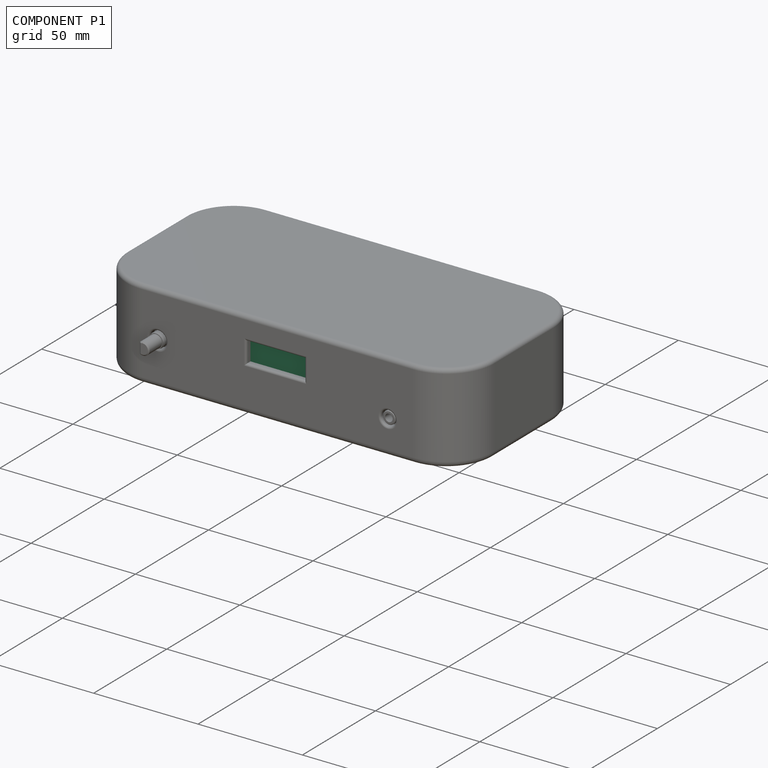
[diagram: component P1 — assembled]
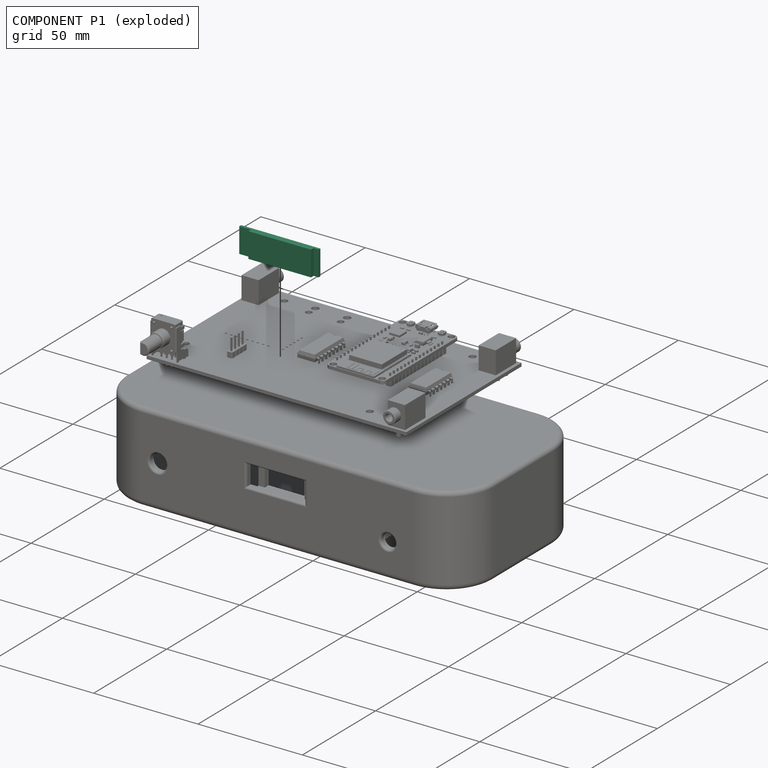
[diagram: component P1 — exploded]
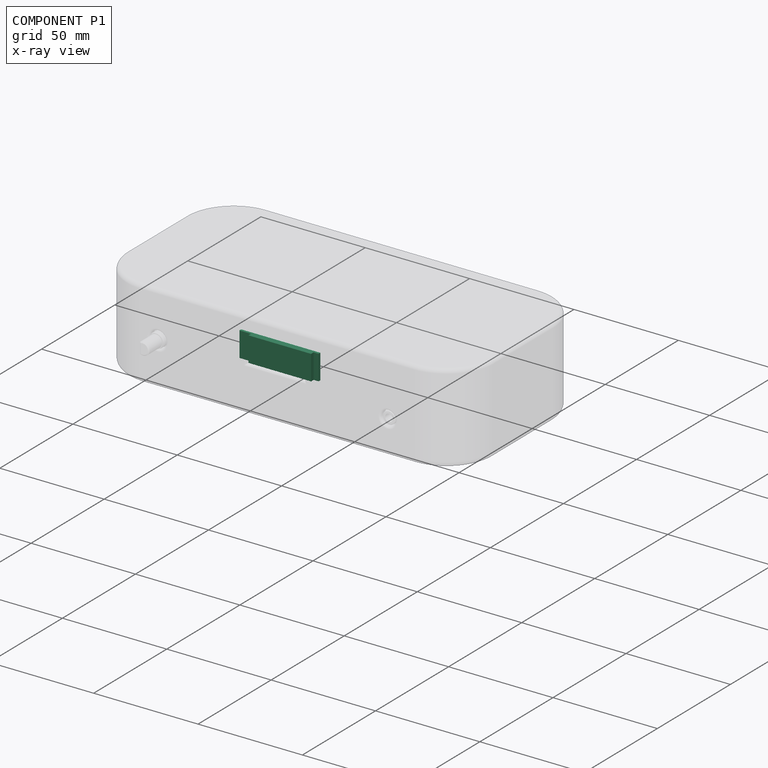
[diagram: component P1 — x-ray view]
COMPONENT P1 — recipe-attached ("OLED Module", modeled in this document).
Held by: resting contact with P2 (derived edge).
Construction recipe (the document's own serialized feature program — sketch geometry with constraints, then the solid features built on it; lengths are millimeters unless a unit is written):

FEATURE [Sketcher::SketchObject] Sketch004
  ArcFitTolerance = 1e-06
  AttachmentSupport = -> [XZ_Plane001]
  ExternalBSplineMaxDegree = 5
  ExternalBSplineTolerance = 0.0001
  FixShape = 1
  FullyConstrained = true
  InternalTolerance = 1e-06
  InvalidShape = false
  MakeInternals = false
  MapMode = 5
  Placement = pos=(0,0,0) rot=(1,0,0;1.5708rad)
  Support = -> [XZ_Plane001]
  TreeRank = 142
  ValidateShape = false
  sketch-geometry (4):
    g0: LineSegment StartX=0 StartY=12 StartZ=0 EndX=38 EndY=12 EndZ=0
    g1: LineSegment StartX=38 StartY=12 StartZ=0 EndX=38 EndY=0 EndZ=0
    g2: LineSegment StartX=38 StartY=0 StartZ=0 EndX=0 EndY=0 EndZ=0
    g3: LineSegment StartX=0 StartY=0 StartZ=0 EndX=0 EndY=12 EndZ=0
  constraints (11):
    c: Coincident(g0,g1)
    c: Coincident(g1,g2)
    c: Coincident(g2,g3)
    c: Coincident(g3,g0)
    c: Horizontal(g0)
    c: Horizontal(g2)
    c: Vertical(g1)
    c: Vertical(g3)
    c: DistanceX(g0,g0) = 38
    c: DistanceY(g3,g3) = 12
    c: Coincident(g2,g-1)
FEATURE [PartDesign::Pad] Pad002
  AddSubType = 0
  AlongSketchNormal = false
  AutoTaperInnerAngle = true
  CheckUpToFaceLimits = true
  ClaimChildren = false
  Direction = (0,-1,-2e-16)
  Fit = 0
  FitJoin = 0
  FixShape = 1
  InnerFit = 0
  InnerFitJoin = 0
  InvalidShape = false
  Length = 1.25
  Length2 = 100
  Linearize = true
  NewSolid = false
  Profile = -> Sketch004
  Suppress = false
  TaperInnerAngle = 0
  TaperInnerAngleRev = 0
  TreeRank = 143
  Type = 0
  ValidateShape = false
  _ProfileBasedVersion = 1
FEATURE [PartDesign::Body] Body001  label="PCB001"
  AutoGroupSolids = false
  ClaimAllChildren = false
  ExportMode = 0
  FixShape = 1
  Group = -> [Sketch004,Pad002]
  InvalidShape = false
  Origin = -> Origin006
  Tip = -> Pad002
  TreeRank = 141
  ValidateShape = false
  _ExportChildren = -> [Pad002]
  _GroupVersion = 1
FEATURE [Sketcher::SketchObject] Sketch005
  ArcFitTolerance = 1e-06
  AttachmentSupport = -> [XZ_Plane003]
  ExternalBSplineMaxDegree = 5
  ExternalBSplineTolerance = 0.0001
  FixShape = 1
  FullyConstrained = true
  InternalTolerance = 1e-06
  InvalidShape = false
  MakeInternals = false
  MapMode = 5
  Placement = pos=(0,0,0) rot=(1,0,0;1.5708rad)
  Support = -> [XZ_Plane003]
  TreeRank = 162
  ValidateShape = false
  sketch-geometry (4):
    g0: LineSegment StartX=5.6 StartY=12 StartZ=0 EndX=35.6 EndY=12 EndZ=0
    g1: LineSegment StartX=35.6 StartY=12 StartZ=0 EndX=35.6 EndY=0 EndZ=0
    g2: LineSegment StartX=35.6 StartY=0 StartZ=0 EndX=5.6 EndY=0 EndZ=0
    g3: LineSegment StartX=5.6 StartY=0 StartZ=0 EndX=5.6 EndY=12 EndZ=0
  constraints (12):
    c: Coincident(g0,g1)
    c: Coincident(g1,g2)
    c: Coincident(g2,g3)
    c: Coincident(g3,g0)
    c: Horizontal(g0)
    c: Horizontal(g2)
    c: Vertical(g1)
    c: Vertical(g3)
    c: DistanceX(g0,g0) = 30
    c: DistanceY(g3,g3) = 12
    c: Horizontal(g2,g-1)
    c: DistanceX(g-1,g2) = 5.6
FEATURE [PartDesign::Pad] Pad003
  AddSubType = 0
  AlongSketchNormal = false
  AutoTaperInnerAngle = true
  CheckUpToFaceLimits = true
  ClaimChildren = false
  Direction = (0,-1,2e-16)
  Fit = 0
  FitJoin = 0
  FixShape = 1
  InnerFit = 0
  InnerFitJoin = 0
  InvalidShape = false
  Length = 1.75
  Length2 = 100
  Linearize = true
  NewSolid = false
  Profile = -> Sketch005
  Suppress = false
  TaperInnerAngle = 0
  TaperInnerAngleRev = 0
  TreeRank = 163
  Type = 0
  ValidateShape = false
  _ProfileBasedVersion = 1
  expr: Length = 1.75
FEATURE [PartDesign::Body] Body002  label="Glass"
  AutoGroupSolids = false
  ClaimAllChildren = false
  ExportMode = 0
  FixShape = 1
  Group = -> [Sketch005,Pad003]
  InvalidShape = false
  Origin = -> Origin008
  Placement = pos=(0,-1.25,0) rot=(0,0,1;0rad)
  Tip = -> Pad003
  TreeRank = 161
  ValidateShape = false
  _ExportChildren = -> [Pad003]
  _GroupVersion = 1
PROVENANCE & LICENSES
Assembly and component geometry: a FreeCAD (.FCStd) document from a public repository crawl; components, placements and joints were extracted with FreeCAD and each solid tessellated.
Construction recipes: the document's own serialized feature recipes (and, for linked parts, the recipes of companion documents from the same project).
License: as declared in the source repository (recorded in the dataset sidecar).
Joints: native FreeCAD joints and A2plus constraints are mapped to standard mate types; edges marked 'derived from contact' connect touching components and are measured from the geometry, not modeled.
Verification: 2 of this assembly's 3 components carry a construction recipe (2 from this document itself); the rest are geometry-only. Every component's tessellation passed the extraction mesh gates (mesh-volume checksum against the B-rep where available, bounding-box inflation <= 2%).
Renders: orthographic iso camera (az 35 / el 25); the floor grid conveys scale (grid pitch printed in each image; no ruler). In the exploded view each component is displaced by its stored offset vector: the offsets alone carry the explosion direction (mate normal/axis signs are not orientation cues and do not encode it), and separation distances are assigned per mate-chain, not proportionally to assembly-order depth.
